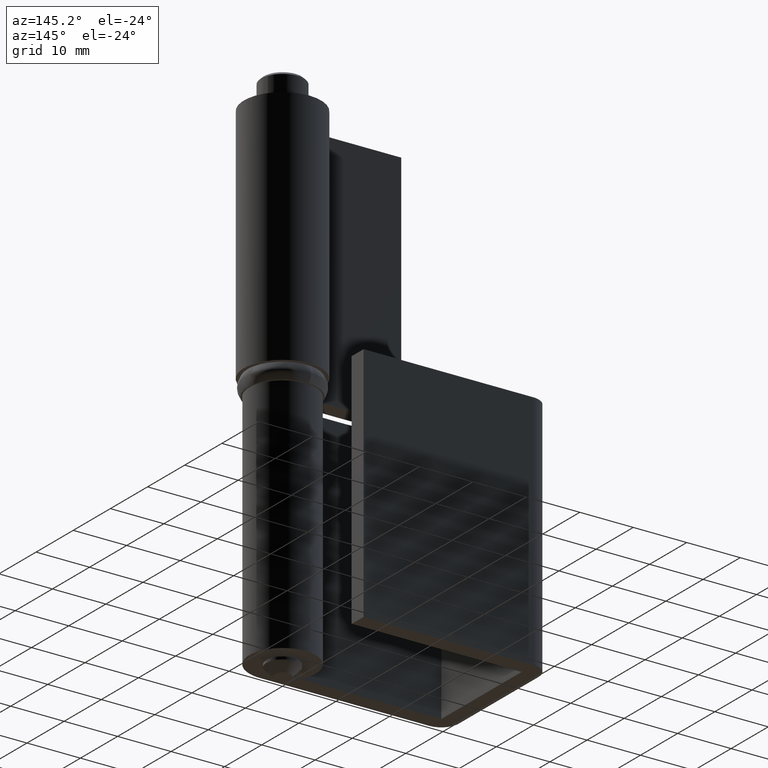
[diagram: clean part render]
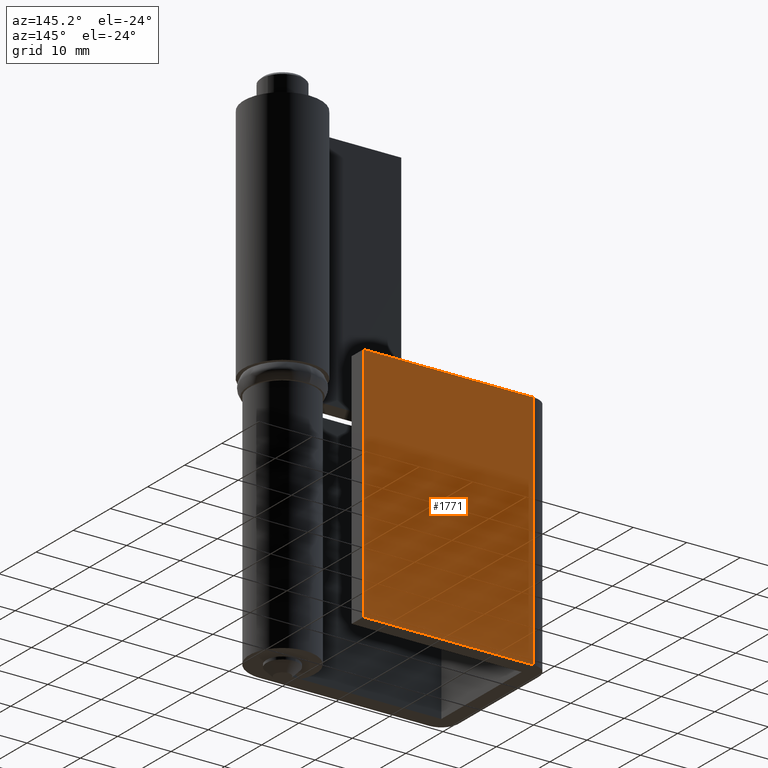
[diagram: same view with one face highlighted and labeled with its STEP entity id]
A machine part, auxiliary view. The second image highlights one B-rep face of the part: STEP entity #1771.
In plain terms, the highlighted face is a freeform B-spline surface patch.
Its self-contained STEP definition (entity closure, byte-faithful):
#1390=CARTESIAN_POINT('',(-31.800003000000000,21.800003000000000,2.0));
#1391=VERTEX_POINT('',#1390);
#1405=CARTESIAN_POINT('',(0.0,21.800003000000000,2.0));
#1406=VERTEX_POINT('',#1405);
#1407=CARTESIAN_POINT('',(0.0,21.800003000000000,2.0));
#1408=CARTESIAN_POINT('',(-31.800003000000000,21.800003000000000,2.0));
#1409=QUASI_UNIFORM_CURVE('',1,(#1407,#1408),.UNSPECIFIED.,.F.,.U.);
#1410=EDGE_CURVE('',#1406,#1391,#1409,.T.);
#1434=CARTESIAN_POINT('',(0.0,21.800003000000000,47.0));
#1435=VERTEX_POINT('',#1434);
#1441=CARTESIAN_POINT('',(-31.800003000000000,21.800003000000000,47.0));
#1442=VERTEX_POINT('',#1441);
#1443=CARTESIAN_POINT('',(0.0,21.800003000000000,47.0));
#1444=CARTESIAN_POINT('',(-31.800003000000000,21.800003000000000,47.0));
#1445=QUASI_UNIFORM_CURVE('',1,(#1443,#1444),.UNSPECIFIED.,.F.,.U.);
#1446=EDGE_CURVE('',#1435,#1442,#1445,.T.);
#1748=CARTESIAN_POINT('',(-31.800003000000000,21.800003000000000,47.0));
#1749=CARTESIAN_POINT('',(-31.800003000000000,21.800003000000000,2.0));
#1750=QUASI_UNIFORM_CURVE('',1,(#1748,#1749),.UNSPECIFIED.,.F.,.U.);
#1751=EDGE_CURVE('',#1442,#1391,#1750,.T.);
#1756=CARTESIAN_POINT('',(-33.388413386731102,21.800003000000000,49.247749912781281));
#1757=CARTESIAN_POINT('',(-33.388413386731102,21.800003000000000,-0.247751119775324));
#1758=CARTESIAN_POINT('',(1.588410955359469,21.800003000000000,49.247749912781281));
#1759=CARTESIAN_POINT('',(1.588410955359469,21.800003000000000,-0.247751119775324));
#1760=B_SPLINE_SURFACE_WITH_KNOTS('',1,1,((#1756,#1758),(#1757,#1759)),.UNSPECIFIED.,.F.,.F.,.U.,(2,2),(2,2),(0.0,49.495501032556596),(0.0,34.976824342090573),.UNSPECIFIED.);
#1761=ORIENTED_EDGE('',*,*,#1410,.T.);
#1762=ORIENTED_EDGE('',*,*,#1751,.F.);
#1763=ORIENTED_EDGE('',*,*,#1446,.F.);
#1764=CARTESIAN_POINT('',(0.0,21.800003000000000,47.0));
#1765=CARTESIAN_POINT('',(0.0,21.800003000000000,2.0));
#1766=QUASI_UNIFORM_CURVE('',1,(#1764,#1765),.UNSPECIFIED.,.F.,.U.);
#1767=EDGE_CURVE('',#1435,#1406,#1766,.T.);
#1768=ORIENTED_EDGE('',*,*,#1767,.T.);
#1769=EDGE_LOOP('',(#1761,#1762,#1763,#1768));
#1770=FACE_OUTER_BOUND('',#1769,.T.);
#1771=ADVANCED_FACE('',(#1770),#1760,.F.);